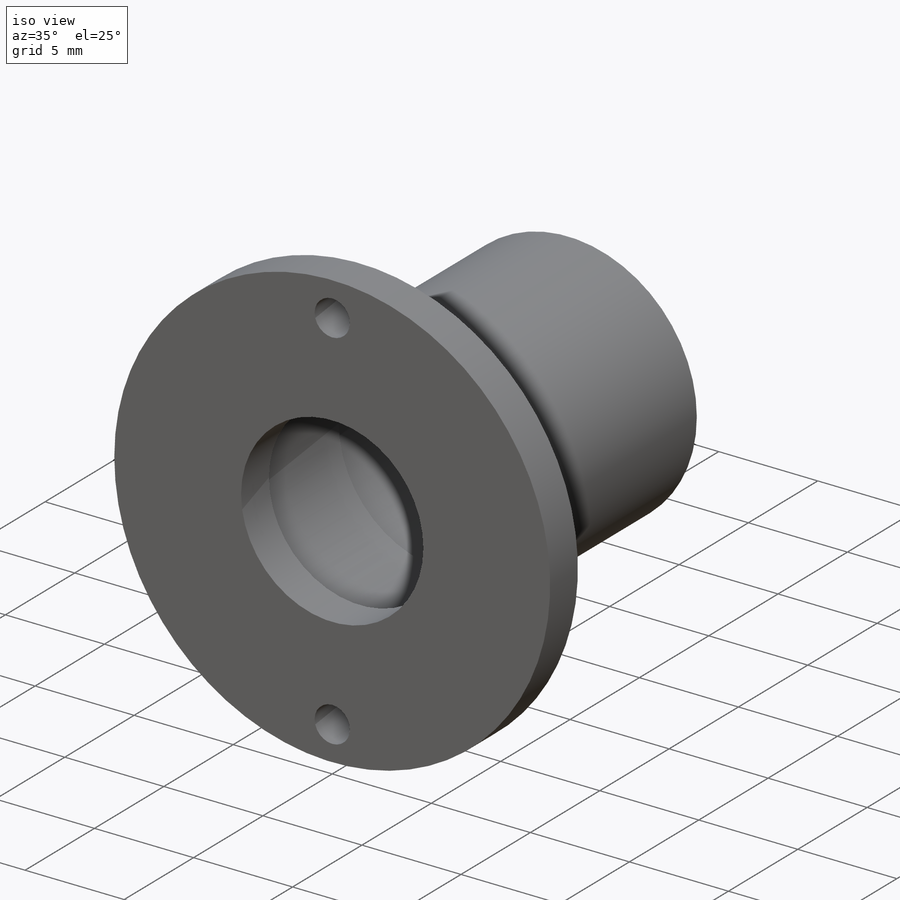
[diagram: iso view]
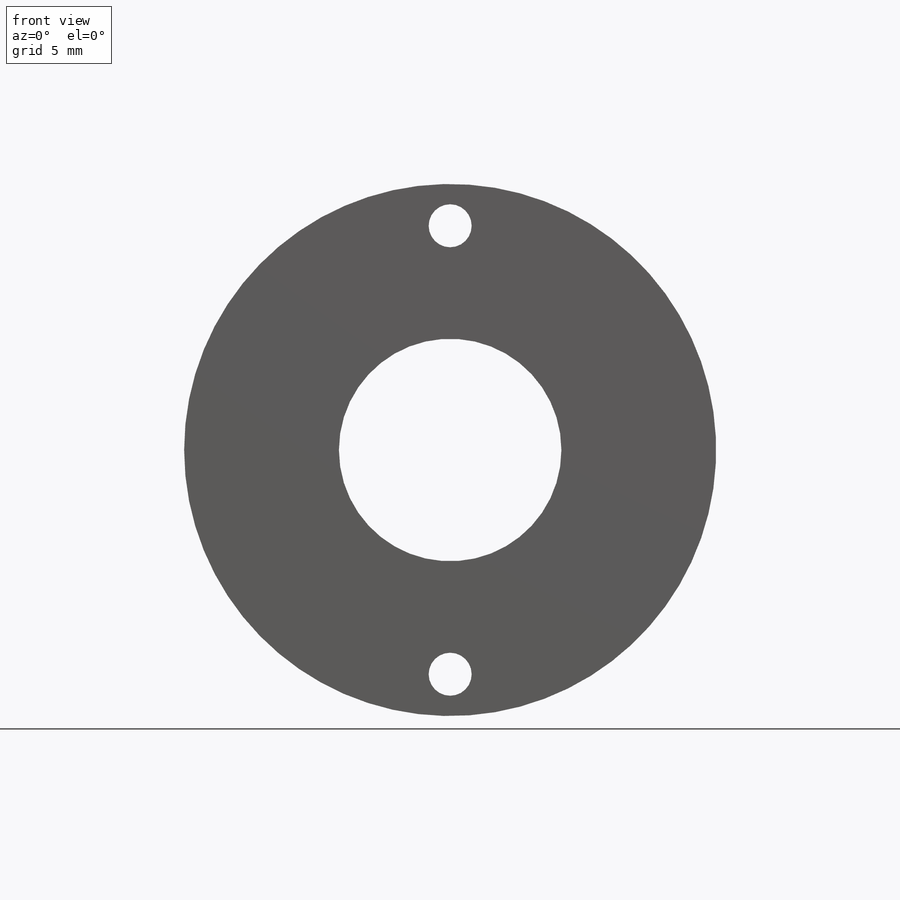
[diagram: front view]
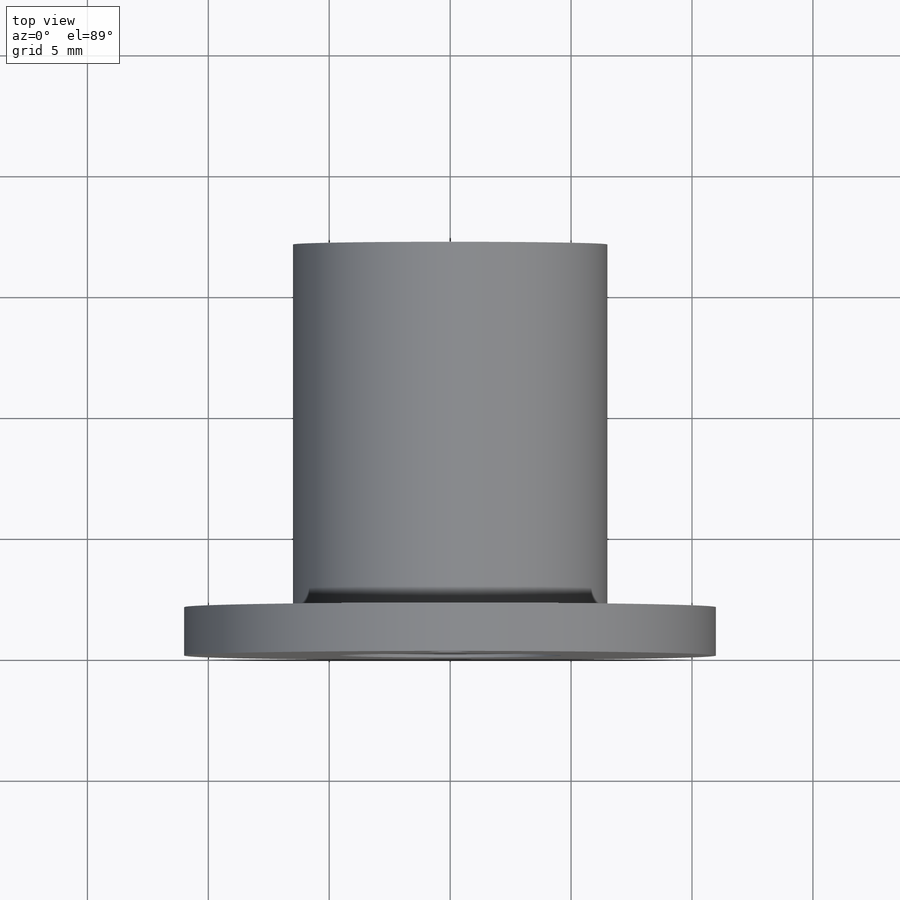
[diagram: top view]
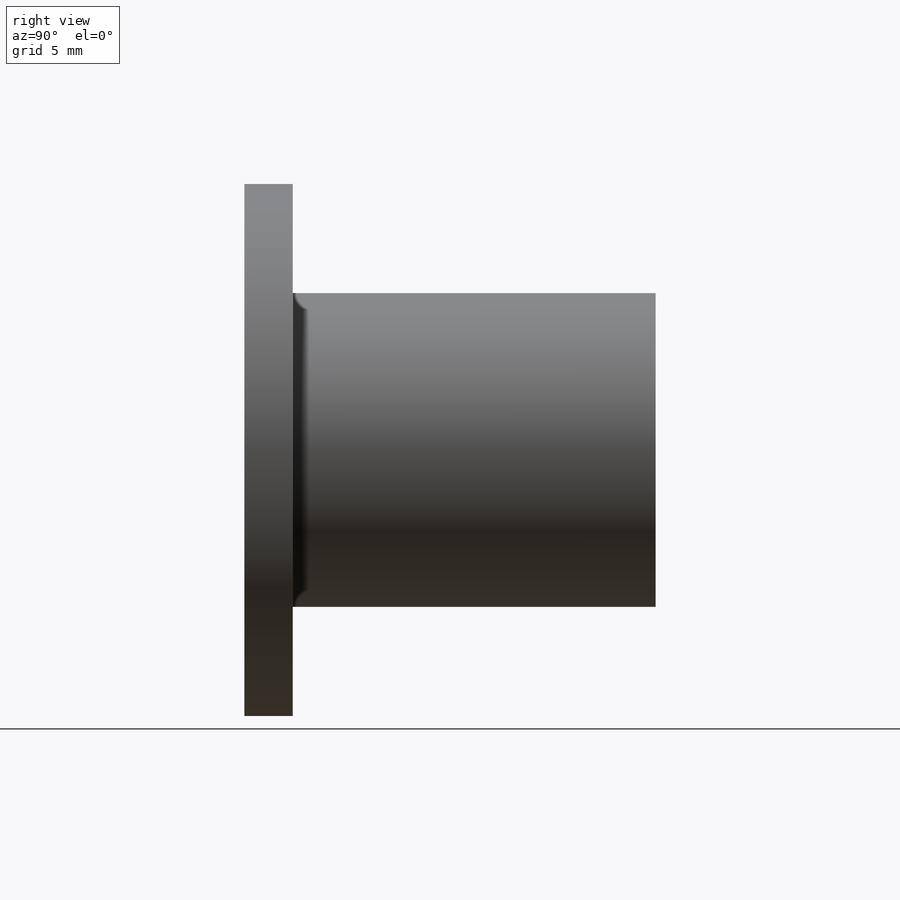
[diagram: right view]
SOLIDWORKS PART (.sldprt)
format: sldprt  version: not decoded by parser v0  size: 208,384 bytes
history: native  units: mm
features: sketch x4, material x1, revolve x1, hole x1 (+11 scaffold rows collapsed)
feature tree (18):
  scaffold x11  (default folders/planes/origin — collapsed)
  material  "6061-T6 (SS)"
  sketch  "Sketch1"  dims[D1=2.0mm D2=10.55mm D3=9.2mm D4=22.0mm D5=11.0mm D6=6.0mm D7=1.0mm D8=15.0mm]
  revolve  "Revolve1"  Angle=360deg
  sketch  "Sketch2"  dims[D1=18.5436mm]
  hole  "#0 Clearance Hole1"  Diameter=1.778mm Depth=19.05mm
  sketch  "Sketch4"
  sketch  "Sketch3"  dims[hole-wizard template sketch: 47 standard entries collapsed; hole parameters kept: c15.Hole Depth=19.05mm c15.D3=~14.816244mm c15.Drill Angle=118.0deg]
decode coverage: 5 of 6 modeling features carry decoded parameters
note: ~ marks probable driven/reference dimensions
note: suppression state not decoded; provenance and decode notes live in map.json
